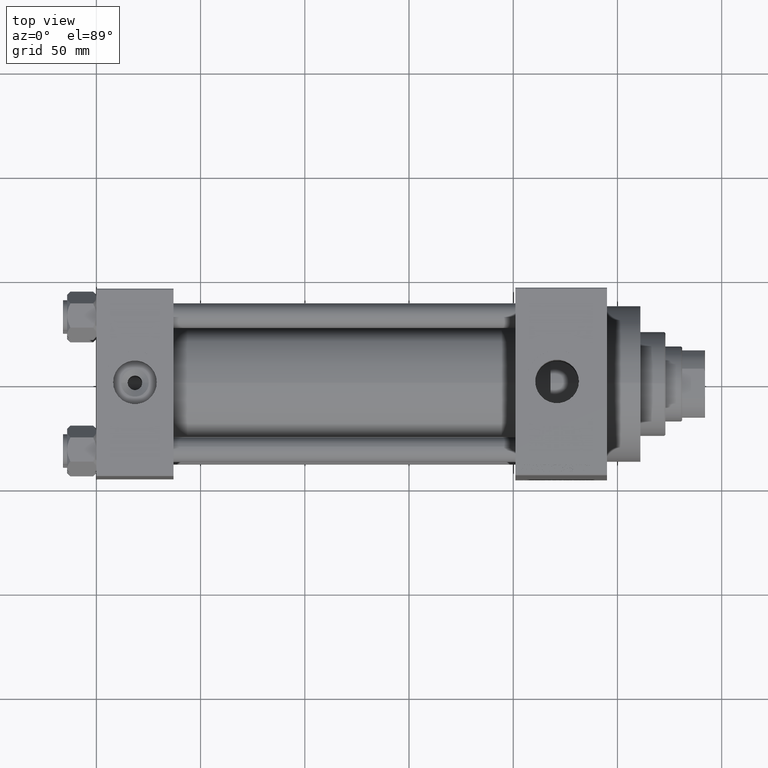
[diagram: clean part render]
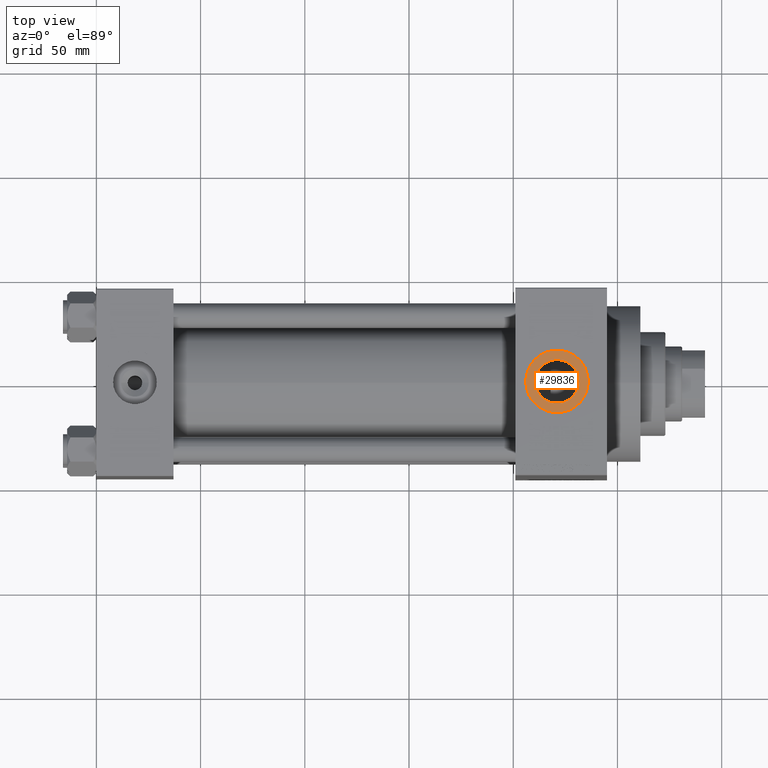
[diagram: same view with one face highlighted and labeled with its STEP entity id]
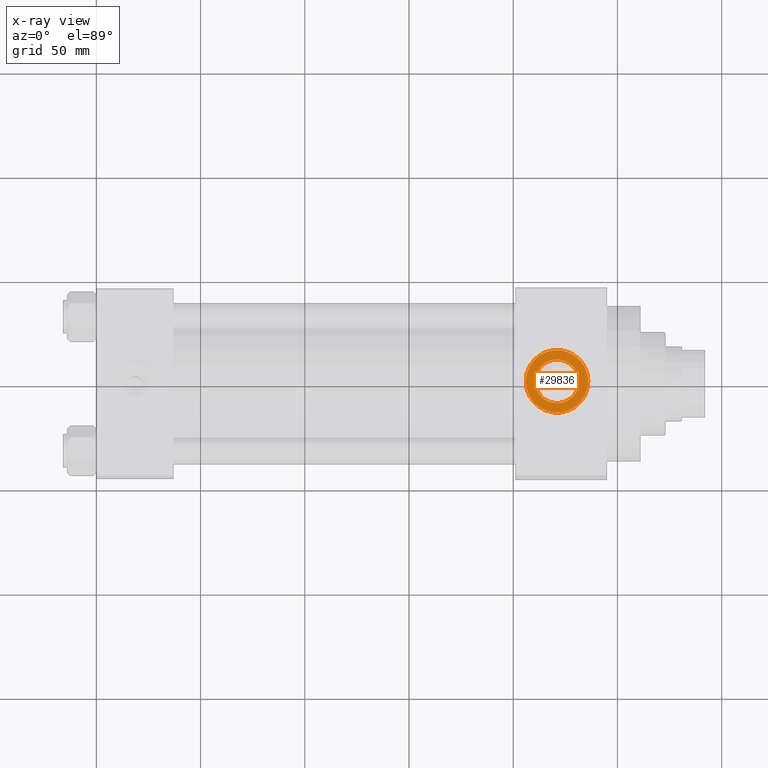
[diagram: x-ray of the same camera — body ghosted, the highlighted face saturated]
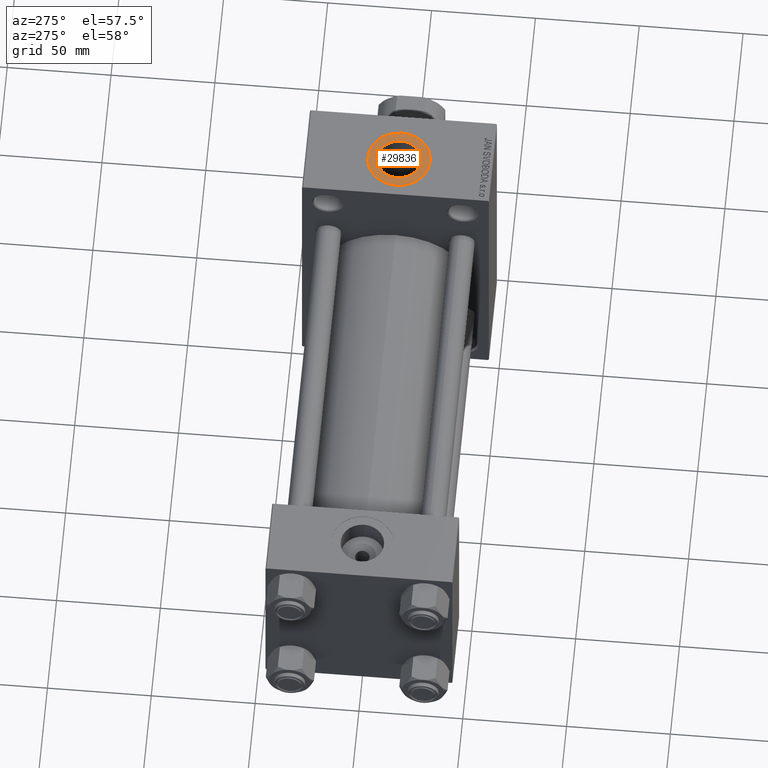
[diagram: same view with one face highlighted and labeled with its STEP entity id]
A machine part, top view. The second image highlights one B-rep face of the part: STEP entity #29836.
The next image is the same camera in x-ray: the body ghosted, the highlighted face saturated — about 0% of this face is hidden behind the body in this view.
A second angle (auxiliary view) of the same face is appended — the face is thin or edge-on in the first view.
In plain terms, the highlighted planar face has unit normal (0, 0, 1).
Its self-contained STEP definition (entity closure, byte-faithful):
#361 = AXIS2_PLACEMENT_3D ( 'NONE', #26592, #37640, #8622 ) ;
#418 = DIRECTION ( 'NONE',  ( 1.000000000000000000, 0.000000000000000000, 0.000000000000000000 ) ) ;
#1761 = AXIS2_PLACEMENT_3D ( 'NONE', #10730, #32305, #36604 ) ;
#2433 = ORIENTED_EDGE ( 'NONE', *, *, #15279, .T. ) ;
#4465 = EDGE_LOOP ( 'NONE', ( #13378, #7129 ) ) ;
#4738 = CARTESIAN_POINT ( 'NONE',  ( 220.9999999999999716, -1.094803260394251466E-14, 70.79999999999996874 ) ) ;
#7129 = ORIENTED_EDGE ( 'NONE', *, *, #24707, .T. ) ;
#7159 = PLANE ( 'NONE',  #23660 ) ;
#7985 = EDGE_LOOP ( 'NONE', ( #2433, #34766 ) ) ;
#8622 = DIRECTION ( 'NONE',  ( 1.000000000000000000, 0.000000000000000000, 0.000000000000000000 ) ) ;
#10238 = CARTESIAN_POINT ( 'NONE',  ( 210.5199999999999818, -1.094803260394251466E-14, 70.79999999999996874 ) ) ;
#10730 = CARTESIAN_POINT ( 'NONE',  ( 220.9999999999999716, -1.094803260394251466E-14, 70.79999999999996874 ) ) ;
#12975 = CARTESIAN_POINT ( 'NONE',  ( 231.4799999999999613, -9.664602758436089169E-15, 70.79999999999996874 ) ) ;
#13378 = ORIENTED_EDGE ( 'NONE', *, *, #42216, .T. ) ;
#14406 = VERTEX_POINT ( 'NONE', #42106 ) ;
#15279 = EDGE_CURVE ( 'NONE', #21067, #35499, #36327, .T. ) ;
#16503 = CARTESIAN_POINT ( 'NONE',  ( 220.9999999999999716, -1.094803260394251466E-14, 70.79999999999996874 ) ) ;
#16743 = DIRECTION ( 'NONE',  ( 1.000000000000000000, 0.000000000000000000, 0.000000000000000000 ) ) ;
#19651 = CIRCLE ( 'NONE', #31910, 15.00000000000001421 ) ;
#21067 = VERTEX_POINT ( 'NONE', #10238 ) ;
#23150 = VERTEX_POINT ( 'NONE', #44019 ) ;
#23660 = AXIS2_PLACEMENT_3D ( 'NONE', #29436, #32792, #37107 ) ;
#24707 = EDGE_CURVE ( 'NONE', #14406, #23150, #19651, .T. ) ;
#24714 = CIRCLE ( 'NONE', #36221, 15.00000000000001421 ) ;
#26592 = CARTESIAN_POINT ( 'NONE',  ( 220.9999999999999716, -1.094803260394251466E-14, 70.79999999999996874 ) ) ;
#29436 = CARTESIAN_POINT ( 'NONE',  ( 220.9999999999999716, -1.094803260394251466E-14, 70.79999999999996874 ) ) ;
#29836 = ADVANCED_FACE ( 'NONE', ( #38170, #40461 ), #7159, .T. ) ;
#30624 = DIRECTION ( 'NONE',  ( 0.000000000000000000, 0.000000000000000000, 1.000000000000000000 ) ) ;
#31910 = AXIS2_PLACEMENT_3D ( 'NONE', #4738, #30624, #418 ) ;
#32305 = DIRECTION ( 'NONE',  ( -0.000000000000000000, -0.000000000000000000, -1.000000000000000000 ) ) ;
#32792 = DIRECTION ( 'NONE',  ( 0.000000000000000000, 0.000000000000000000, 1.000000000000000000 ) ) ;
#34766 = ORIENTED_EDGE ( 'NONE', *, *, #42313, .T. ) ;
#35499 = VERTEX_POINT ( 'NONE', #12975 ) ;
#36221 = AXIS2_PLACEMENT_3D ( 'NONE', #16503, #45762, #16743 ) ;
#36327 = CIRCLE ( 'NONE', #361, 10.47999999999998977 ) ;
#36604 = DIRECTION ( 'NONE',  ( 1.000000000000000000, 0.000000000000000000, 0.000000000000000000 ) ) ;
#37107 = DIRECTION ( 'NONE',  ( 1.000000000000000000, 0.000000000000000000, -0.000000000000000000 ) ) ;
#37640 = DIRECTION ( 'NONE',  ( -0.000000000000000000, -0.000000000000000000, -1.000000000000000000 ) ) ;
#38170 = FACE_BOUND ( 'NONE', #7985, .T. ) ;
#40461 = FACE_OUTER_BOUND ( 'NONE', #4465, .T. ) ;
#42106 = CARTESIAN_POINT ( 'NONE',  ( 205.9999999999999716, -9.111062405221479547E-15, 70.79999999999996874 ) ) ;
#42216 = EDGE_CURVE ( 'NONE', #23150, #14406, #24714, .T. ) ;
#42313 = EDGE_CURVE ( 'NONE', #35499, #21067, #46943, .T. ) ;
#44019 = CARTESIAN_POINT ( 'NONE',  ( 236.0000000000000000, -1.094803260394251466E-14, 70.79999999999996874 ) ) ;
#45762 = DIRECTION ( 'NONE',  ( 0.000000000000000000, 0.000000000000000000, 1.000000000000000000 ) ) ;
#46943 = CIRCLE ( 'NONE', #1761, 10.47999999999998977 ) ;